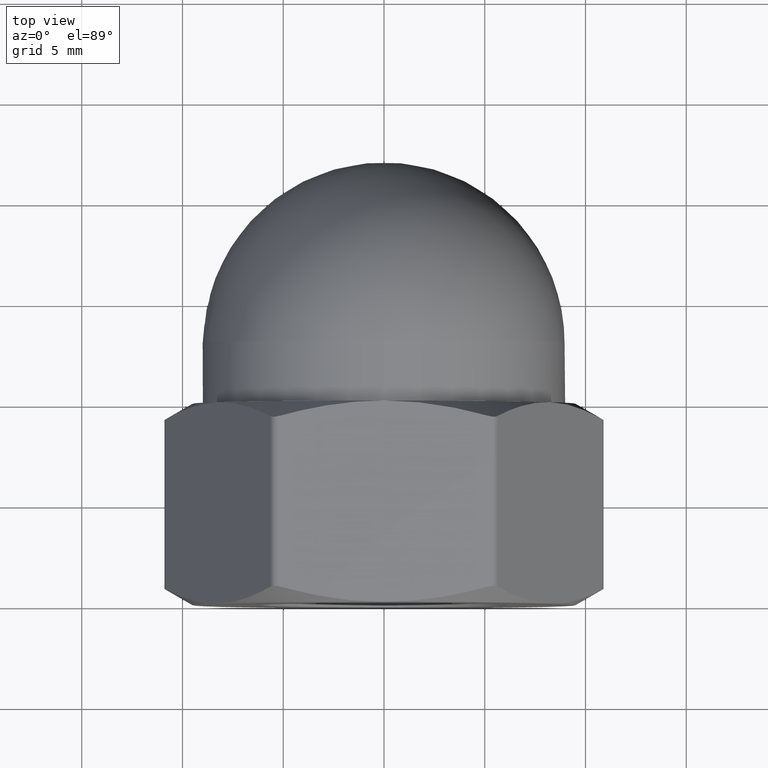
[diagram: clean part render]
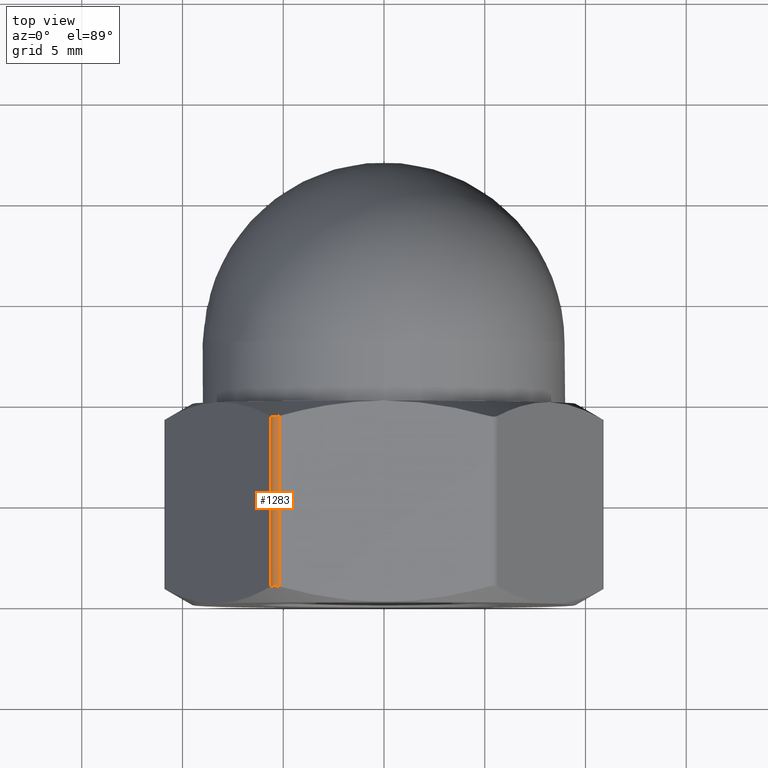
[diagram: same view with one face highlighted and labeled with its STEP entity id]
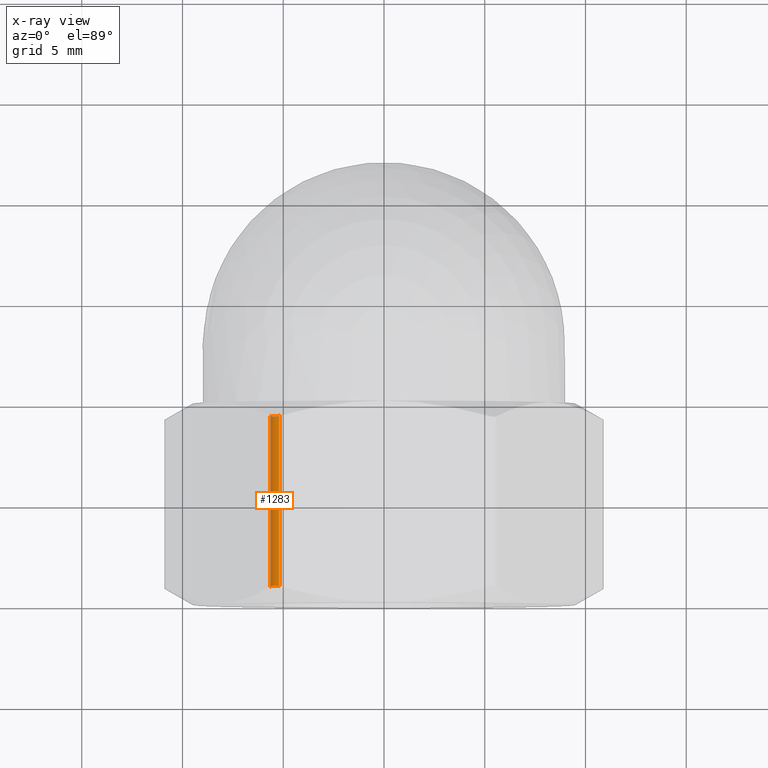
[diagram: x-ray of the same camera — body ghosted, the highlighted face saturated]
A machine part, top view. The second image highlights one B-rep face of the part: STEP entity #1283.
The next image is the same camera in x-ray: the body ghosted, the highlighted face saturated — about 0% of this face is hidden behind the body in this view.
In plain terms, the highlighted cylindrical surface (edge-blend (fillet) strip) has radius 0.5 mm, axis along (0, -1, 0).
Its self-contained STEP definition (entity closure, byte-faithful):
#14 = ORIENTED_EDGE ( 'NONE', *, *, #1075, .F. ) ;
#35 = CARTESIAN_POINT ( 'NONE',  ( -5.282019346759051700, 0.7906286841259500000, 9.500000000000000000 ) ) ;
#48 = EDGE_CURVE ( 'NONE', #586, #897, #768, .T. ) ;
#69 = FACE_OUTER_BOUND ( 'NONE', #300, .T. ) ;
#80 = CARTESIAN_POINT ( 'NONE',  ( -5.196152422706708400, 0.7668388872022143800, 9.500000000000000000 ) ) ;
#91 = ORIENTED_EDGE ( 'NONE', *, *, #1327, .F. ) ;
#99 = CARTESIAN_POINT ( 'NONE',  ( -5.586231662572641800, 9.209371315874232500, 9.324362937574219900 ) ) ;
#106 = CARTESIAN_POINT ( 'NONE',  ( -5.196152422706708400, 9.233161112797784400, 9.500000000000000000 ) ) ;
#129 = ORIENTED_EDGE ( 'NONE', *, *, #1131, .F. ) ;
#188 = DIRECTION ( 'NONE',  ( 0.0000000000000000000, -1.000000000000000000, 0.0000000000000000000 ) ) ;
#189 = VERTEX_POINT ( 'NONE', #1108 ) ;
#236 = DIRECTION ( 'NONE',  ( 0.0000000000000000000, 0.0000000000000000000, -1.000000000000000000 ) ) ;
#251 = VECTOR ( 'NONE', #188, 1000.000000000000000 ) ;
#300 = EDGE_LOOP ( 'NONE', ( #129, #745, #91, #14 ) ) ;
#334 = CARTESIAN_POINT ( 'NONE',  ( -5.196152422706631100, 10.00000000000000000, 9.000000000000000000 ) ) ;
#482 = VECTOR ( 'NONE', #524, 1000.000000000000000 ) ;
#520 = CARTESIAN_POINT ( 'NONE',  ( -5.282050604140798600, 9.209362655883529300, 9.499999999999994700 ) ) ;
#524 = DIRECTION ( 'NONE',  ( -0.0000000000000000000, 1.000000000000000000, -0.0000000000000000000 ) ) ;
#542 = CARTESIAN_POINT ( 'NONE',  ( -5.629165124598832100, 0.7668388872022399200, 9.250000000000032000 ) ) ;
#547 = LINE ( 'NONE', #1266, #251 ) ;
#586 = VERTEX_POINT ( 'NONE', #1090 ) ;
#615 = CARTESIAN_POINT ( 'NONE',  ( -5.629165124598851700, 10.00000000000000000, 9.249999999999998200 ) ) ;
#662 = CARTESIAN_POINT ( 'NONE',  ( -5.586216033881752800, 0.7906373441164722400, 9.324390007260881000 ) ) ;
#677 = B_SPLINE_CURVE_WITH_KNOTS ( 'NONE', 3,
 ( #1186, #99, #1286, #848, #520, #106 ),
 .UNSPECIFIED., .F., .F.,
 ( 4, 2, 4 ),
 ( 1.939479807224432100E-018, 0.0002637781458274465200, 0.0005275562916548910900 ),
 .UNSPECIFIED. ) ;
#745 = ORIENTED_EDGE ( 'NONE', *, *, #48, .F. ) ;
#768 = LINE ( 'NONE', #615, #482 ) ;
#848 = CARTESIAN_POINT ( 'NONE',  ( -5.370289189536062900, 9.196108957237596500, 9.476903473388027500 ) ) ;
#897 = VERTEX_POINT ( 'NONE', #1239 ) ;
#938 = B_SPLINE_CURVE_WITH_KNOTS ( 'NONE', 3,
 ( #979, #35, #1196, #1212, #662, #542 ),
 .UNSPECIFIED., .F., .F.,
 ( 4, 2, 4 ),
 ( 3.580494573388970700E-017, 0.0002637781458274768200, 0.0005275562916549178700 ),
 .UNSPECIFIED. ) ;
#978 = CYLINDRICAL_SURFACE ( 'NONE', #1066, 0.5000000000000004400 ) ;
#979 = CARTESIAN_POINT ( 'NONE',  ( -5.196152422706708400, 0.7668388872022143800, 9.500000000000000000 ) ) ;
#985 = DIRECTION ( 'NONE',  ( 0.0000000000000000000, -1.000000000000000000, 0.0000000000000000000 ) ) ;
#1066 = AXIS2_PLACEMENT_3D ( 'NONE', #334, #985, #236 ) ;
#1075 = EDGE_CURVE ( 'NONE', #189, #1077, #547, .T. ) ;
#1077 = VERTEX_POINT ( 'NONE', #80 ) ;
#1090 = CARTESIAN_POINT ( 'NONE',  ( -5.629165124598832100, 0.7668388872022399200, 9.250000000000032000 ) ) ;
#1108 = CARTESIAN_POINT ( 'NONE',  ( -5.196152422706708400, 9.233161112797784400, 9.500000000000000000 ) ) ;
#1131 = EDGE_CURVE ( 'NONE', #897, #189, #677, .T. ) ;
#1186 = CARTESIAN_POINT ( 'NONE',  ( -5.629165124598851700, 9.233161112797772000, 9.249999999999998200 ) ) ;
#1196 = CARTESIAN_POINT ( 'NONE',  ( -5.369432392635944900, 0.8038038897225788800, 9.477215452927364200 ) ) ;
#1212 = CARTESIAN_POINT ( 'NONE',  ( -5.522094562399022500, 0.8038910427623972000, 9.389258600501152700 ) ) ;
#1239 = CARTESIAN_POINT ( 'NONE',  ( -5.629165124598851700, 9.233161112797772000, 9.249999999999998200 ) ) ;
#1266 = CARTESIAN_POINT ( 'NONE',  ( -5.196152422706631100, 10.00000000000000000, 9.500000000000000000 ) ) ;
#1283 = ADVANCED_FACE ( 'NONE', ( #69 ), #978, .T. ) ;
#1286 = CARTESIAN_POINT ( 'NONE',  ( -5.522793143055620700, 9.196196110277426800, 9.388672582389428800 ) ) ;
#1327 = EDGE_CURVE ( 'NONE', #1077, #586, #938, .T. ) ;